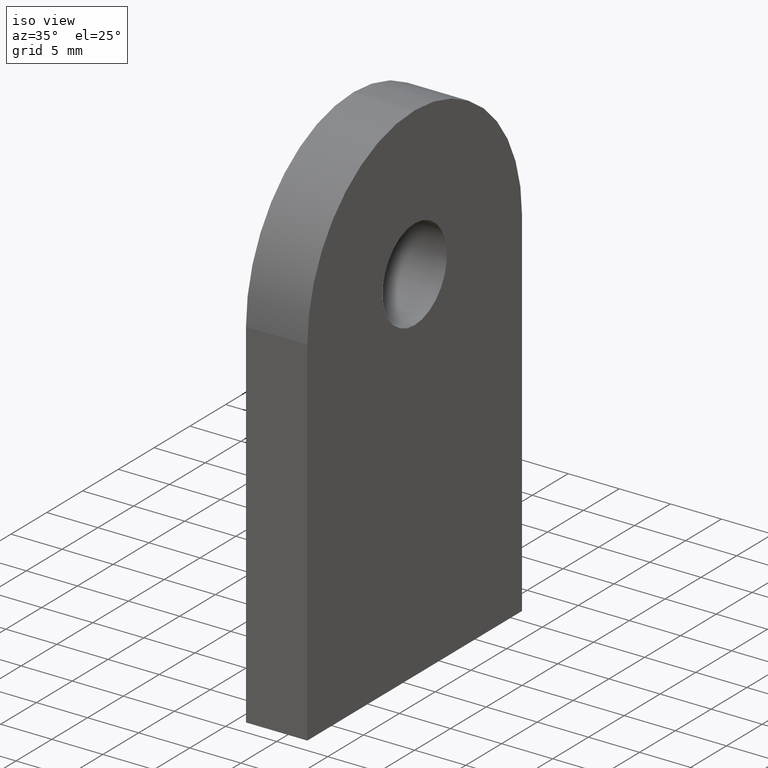
[diagram: clean part render]
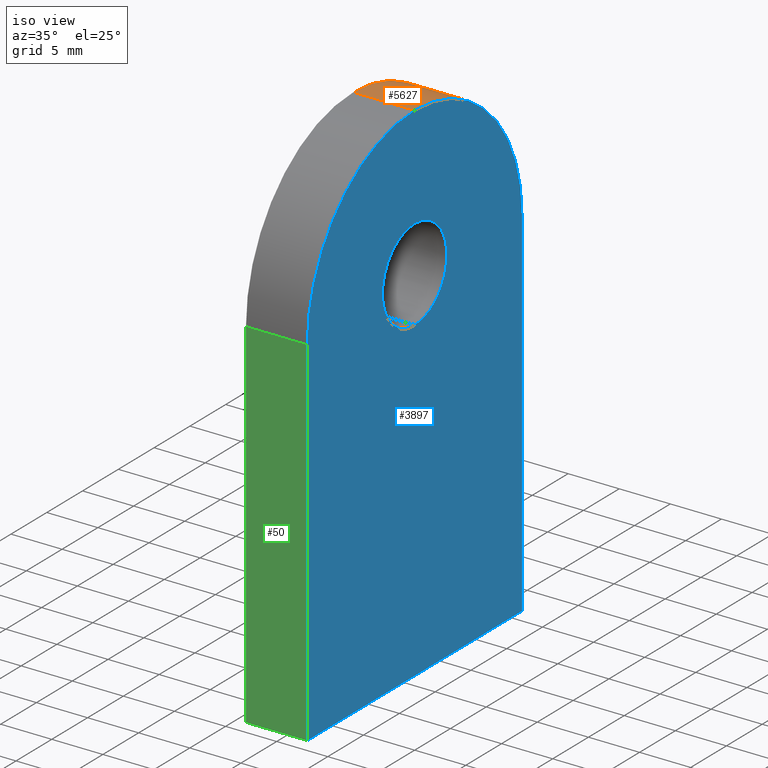
[diagram: same view with three faces highlighted in distinct colors, each labeled with its STEP entity id]
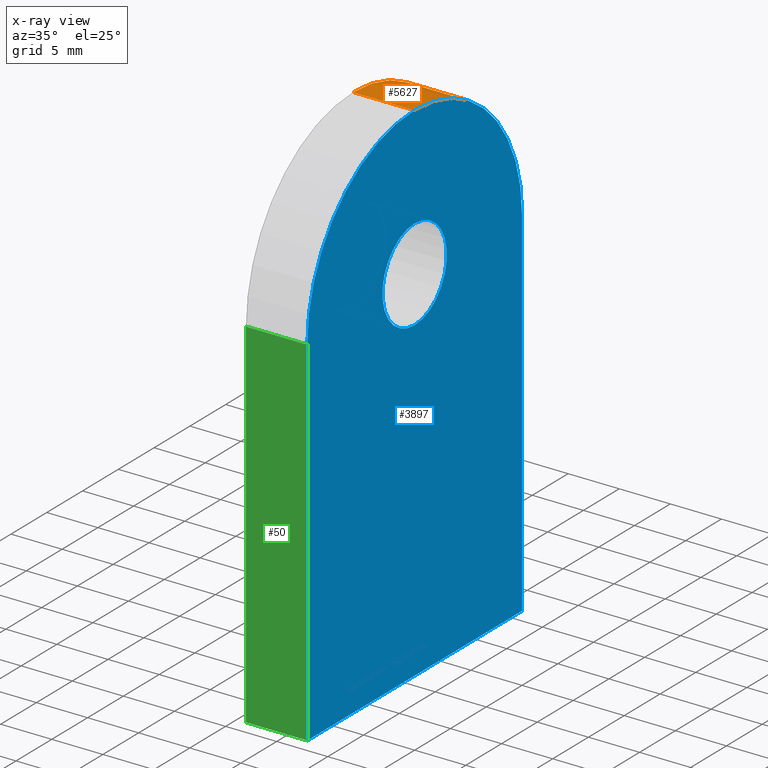
[diagram: x-ray of the same camera — body ghosted, the three highlighted faces saturated]
A machine part, iso view with three faces highlighted in distinct colors.
The next image is the same camera in x-ray (body ghosted, the three faces saturated) — at least one of them is partly hidden behind the body in this view.
Their STEP definitions:

[orange] entity #5627 — the highlighted cylindrical surface (partial cylindrical patch) has radius 15 mm, axis along (-1, -0, -0).
#360 = CARTESIAN_POINT ( 'NONE',  ( 3.000000000000000000, 14.99999999999999800, 34.99999999999999300 ) ) ;
#681 = DIRECTION ( 'NONE',  ( -1.000000000000000000, -0.0000000000000000000, -0.0000000000000000000 ) ) ;
#778 = DIRECTION ( 'NONE',  ( -1.000000000000000000, -0.0000000000000000000, 0.0000000000000000000 ) ) ;
#1973 = VECTOR ( 'NONE', #11272, 1000.000000000000000 ) ;
#2870 = DIRECTION ( 'NONE',  ( -1.000000000000000000, -0.0000000000000000000, 0.0000000000000000000 ) ) ;
#3205 = DIRECTION ( 'NONE',  ( -1.000000000000000000, -0.0000000000000000000, -0.0000000000000000000 ) ) ;
#3506 = CIRCLE ( 'NONE', #5547, 15.00000000000000000 ) ;
#3895 = CIRCLE ( 'NONE', #9639, 15.00000000000000000 ) ;
#4091 = EDGE_CURVE ( 'NONE', #9499, #5758, #7897, .T. ) ;
#4244 = CARTESIAN_POINT ( 'NONE',  ( 3.000000000000000000, 0.0000000000000000000, 49.99999999999999300 ) ) ;
#4472 = EDGE_CURVE ( 'NONE', #9499, #5282, #3506, .T. ) ;
#4508 = CARTESIAN_POINT ( 'NONE',  ( -3.000000000000000000, 0.0000000000000000000, 49.99999999999999300 ) ) ;
#4553 = VERTEX_POINT ( 'NONE', #7978 ) ;
#4656 = DIRECTION ( 'NONE',  ( 0.0000000000000000000, 0.0000000000000000000, 1.000000000000000000 ) ) ;
#4832 = CARTESIAN_POINT ( 'NONE',  ( 3.000000000000000000, 0.0000000000000000000, 34.99999999999999300 ) ) ;
#5282 = VERTEX_POINT ( 'NONE', #9700 ) ;
#5410 = FACE_OUTER_BOUND ( 'NONE', #9135, .T. ) ;
#5547 = AXIS2_PLACEMENT_3D ( 'NONE', #8823, #778, #8861 ) ;
#5627 = ADVANCED_FACE ( 'NONE', ( #5410 ), #7185, .T. ) ;
#5748 = DIRECTION ( 'NONE',  ( 0.0000000000000000000, 0.0000000000000000000, 1.000000000000000000 ) ) ;
#5758 = VERTEX_POINT ( 'NONE', #4508 ) ;
#5922 = AXIS2_PLACEMENT_3D ( 'NONE', #4832, #3205, #5748 ) ;
#5971 = EDGE_CURVE ( 'NONE', #5758, #4553, #3895, .T. ) ;
#6891 = ORIENTED_EDGE ( 'NONE', *, *, #7788, .T. ) ;
#7185 = CYLINDRICAL_SURFACE ( 'NONE', #5922, 15.00000000000000000 ) ;
#7366 = CARTESIAN_POINT ( 'NONE',  ( -3.000000000000000000, 0.0000000000000000000, 34.99999999999999300 ) ) ;
#7710 = LINE ( 'NONE', #360, #7830 ) ;
#7719 = ORIENTED_EDGE ( 'NONE', *, *, #4091, .F. ) ;
#7788 = EDGE_CURVE ( 'NONE', #5282, #4553, #7710, .T. ) ;
#7830 = VECTOR ( 'NONE', #681, 1000.000000000000000 ) ;
#7897 = LINE ( 'NONE', #4244, #1973 ) ;
#7978 = CARTESIAN_POINT ( 'NONE',  ( -3.000000000000000000, 14.99999999999999800, 34.99999999999999300 ) ) ;
#8823 = CARTESIAN_POINT ( 'NONE',  ( 3.000000000000000000, 0.0000000000000000000, 34.99999999999999300 ) ) ;
#8861 = DIRECTION ( 'NONE',  ( 0.0000000000000000000, 0.0000000000000000000, 1.000000000000000000 ) ) ;
#9135 = EDGE_LOOP ( 'NONE', ( #7719, #10598, #6891, #9583 ) ) ;
#9499 = VERTEX_POINT ( 'NONE', #10049 ) ;
#9583 = ORIENTED_EDGE ( 'NONE', *, *, #5971, .F. ) ;
#9639 = AXIS2_PLACEMENT_3D ( 'NONE', #7366, #2870, #4656 ) ;
#9700 = CARTESIAN_POINT ( 'NONE',  ( 3.000000000000000000, 14.99999999999999800, 34.99999999999999300 ) ) ;
#10049 = CARTESIAN_POINT ( 'NONE',  ( 3.000000000000000000, 0.0000000000000000000, 49.99999999999999300 ) ) ;
#10598 = ORIENTED_EDGE ( 'NONE', *, *, #4472, .T. ) ;
#11272 = DIRECTION ( 'NONE',  ( -1.000000000000000000, -0.0000000000000000000, -0.0000000000000000000 ) ) ;

[blue] entity #3897 — the highlighted planar face has unit normal (-1, -0, 0).
#52 = ORIENTED_EDGE ( 'NONE', *, *, #1313, .F. ) ;
#72 = AXIS2_PLACEMENT_3D ( 'NONE', #8174, #9714, #1127 ) ;
#141 = CIRCLE ( 'NONE', #72, 15.00000000000000000 ) ;
#320 = FACE_OUTER_BOUND ( 'NONE', #8721, .T. ) ;
#353 = CARTESIAN_POINT ( 'NONE',  ( 3.000000000000000000, -15.00000000000000000, -3.061616997868383000E-015 ) ) ;
#519 = ORIENTED_EDGE ( 'NONE', *, *, #4190, .F. ) ;
#621 = EDGE_CURVE ( 'NONE', #5282, #6372, #1509, .T. ) ;
#688 = VECTOR ( 'NONE', #1922, 1000.000000000000000 ) ;
#778 = DIRECTION ( 'NONE',  ( -1.000000000000000000, -0.0000000000000000000, 0.0000000000000000000 ) ) ;
#818 = CARTESIAN_POINT ( 'NONE',  ( 3.000000000000000000, 0.0000000000000000000, 35.50000000000000000 ) ) ;
#1056 = VERTEX_POINT ( 'NONE', #353 ) ;
#1127 = DIRECTION ( 'NONE',  ( 0.0000000000000000000, 0.0000000000000000000, 1.000000000000000000 ) ) ;
#1313 = EDGE_CURVE ( 'NONE', #1056, #3963, #10699, .T. ) ;
#1509 = LINE ( 'NONE', #5525, #8283 ) ;
#1590 = CARTESIAN_POINT ( 'NONE',  ( 3.000000000000000000, 15.00000000000000000, -3.061616997868383000E-015 ) ) ;
#1677 = DIRECTION ( 'NONE',  ( 0.0000000000000000000, 0.0000000000000000000, -1.000000000000000000 ) ) ;
#1922 = DIRECTION ( 'NONE',  ( 0.0000000000000000000, -1.000000000000000000, 0.0000000000000000000 ) ) ;
#2026 = ORIENTED_EDGE ( 'NONE', *, *, #621, .F. ) ;
#2538 = VERTEX_POINT ( 'NONE', #7226 ) ;
#2830 = EDGE_LOOP ( 'NONE', ( #6158, #519 ) ) ;
#3373 = DIRECTION ( 'NONE',  ( 1.000000000000000000, 0.0000000000000000000, 0.0000000000000000000 ) ) ;
#3404 = AXIS2_PLACEMENT_3D ( 'NONE', #5268, #9653, #8832 ) ;
#3506 = CIRCLE ( 'NONE', #5547, 15.00000000000000000 ) ;
#3897 = ADVANCED_FACE ( 'NONE', ( #10624, #320 ), #8061, .F. ) ;
#3939 = AXIS2_PLACEMENT_3D ( 'NONE', #818, #3373, #6061 ) ;
#3963 = VERTEX_POINT ( 'NONE', #5025 ) ;
#4190 = EDGE_CURVE ( 'NONE', #6853, #2538, #7347, .T. ) ;
#4472 = EDGE_CURVE ( 'NONE', #9499, #5282, #3506, .T. ) ;
#4968 = CARTESIAN_POINT ( 'NONE',  ( 3.000000000000000000, 5.510910596163087600E-016, 40.00000000000000000 ) ) ;
#5025 = CARTESIAN_POINT ( 'NONE',  ( 3.000000000000000000, -14.99999999999999800, 34.99999999999999300 ) ) ;
#5268 = CARTESIAN_POINT ( 'NONE',  ( 3.000000000000000000, 0.0000000000000000000, 34.99999999999999300 ) ) ;
#5282 = VERTEX_POINT ( 'NONE', #9700 ) ;
#5328 = DIRECTION ( 'NONE',  ( 0.0000000000000000000, 4.956352788505163400E-017, 1.000000000000000000 ) ) ;
#5525 = CARTESIAN_POINT ( 'NONE',  ( 3.000000000000000000, 14.99999999999999800, 34.99999999999999300 ) ) ;
#5547 = AXIS2_PLACEMENT_3D ( 'NONE', #8823, #778, #8861 ) ;
#6047 = CARTESIAN_POINT ( 'NONE',  ( 3.000000000000000000, 0.0000000000000000000, 35.50000000000000000 ) ) ;
#6061 = DIRECTION ( 'NONE',  ( 0.0000000000000000000, 0.0000000000000000000, -1.000000000000000000 ) ) ;
#6096 = CARTESIAN_POINT ( 'NONE',  ( 3.000000000000000000, -15.00000000000000000, -3.061616997868383000E-015 ) ) ;
#6158 = ORIENTED_EDGE ( 'NONE', *, *, #6252, .F. ) ;
#6252 = EDGE_CURVE ( 'NONE', #2538, #6853, #7324, .T. ) ;
#6372 = VERTEX_POINT ( 'NONE', #1590 ) ;
#6757 = EDGE_CURVE ( 'NONE', #3963, #9499, #141, .T. ) ;
#6853 = VERTEX_POINT ( 'NONE', #4968 ) ;
#6887 = VECTOR ( 'NONE', #5328, 1000.000000000000000 ) ;
#6935 = AXIS2_PLACEMENT_3D ( 'NONE', #6047, #6965, #1677 ) ;
#6965 = DIRECTION ( 'NONE',  ( 1.000000000000000000, 0.0000000000000000000, 0.0000000000000000000 ) ) ;
#7027 = LINE ( 'NONE', #10667, #688 ) ;
#7226 = CARTESIAN_POINT ( 'NONE',  ( 3.000000000000000000, 0.0000000000000000000, 30.99999999999999600 ) ) ;
#7315 = ORIENTED_EDGE ( 'NONE', *, *, #7575, .F. ) ;
#7324 = CIRCLE ( 'NONE', #3939, 4.500000000000000900 ) ;
#7347 = CIRCLE ( 'NONE', #6935, 4.500000000000000900 ) ;
#7439 = DIRECTION ( 'NONE',  ( 0.0000000000000000000, 4.956352788505163400E-017, -1.000000000000000000 ) ) ;
#7575 = EDGE_CURVE ( 'NONE', #6372, #1056, #7027, .T. ) ;
#7725 = ORIENTED_EDGE ( 'NONE', *, *, #4472, .F. ) ;
#8061 = PLANE ( 'NONE',  #3404 ) ;
#8174 = CARTESIAN_POINT ( 'NONE',  ( 3.000000000000000000, 0.0000000000000000000, 34.99999999999999300 ) ) ;
#8283 = VECTOR ( 'NONE', #7439, 1000.000000000000000 ) ;
#8579 = ORIENTED_EDGE ( 'NONE', *, *, #6757, .F. ) ;
#8721 = EDGE_LOOP ( 'NONE', ( #8579, #52, #7315, #2026, #7725 ) ) ;
#8823 = CARTESIAN_POINT ( 'NONE',  ( 3.000000000000000000, 0.0000000000000000000, 34.99999999999999300 ) ) ;
#8832 = DIRECTION ( 'NONE',  ( 0.0000000000000000000, 0.0000000000000000000, 1.000000000000000000 ) ) ;
#8861 = DIRECTION ( 'NONE',  ( 0.0000000000000000000, 0.0000000000000000000, 1.000000000000000000 ) ) ;
#9499 = VERTEX_POINT ( 'NONE', #10049 ) ;
#9653 = DIRECTION ( 'NONE',  ( -1.000000000000000000, -0.0000000000000000000, 0.0000000000000000000 ) ) ;
#9700 = CARTESIAN_POINT ( 'NONE',  ( 3.000000000000000000, 14.99999999999999800, 34.99999999999999300 ) ) ;
#9714 = DIRECTION ( 'NONE',  ( -1.000000000000000000, -0.0000000000000000000, 0.0000000000000000000 ) ) ;
#10049 = CARTESIAN_POINT ( 'NONE',  ( 3.000000000000000000, 0.0000000000000000000, 49.99999999999999300 ) ) ;
#10624 = FACE_BOUND ( 'NONE', #2830, .T. ) ;
#10667 = CARTESIAN_POINT ( 'NONE',  ( 3.000000000000000000, 15.00000000000000000, -3.061616997868383000E-015 ) ) ;
#10699 = LINE ( 'NONE', #6096, #6887 ) ;

[green] entity #50 — the highlighted planar face has unit normal (0, -1, 0).
#50 = ADVANCED_FACE ( 'NONE', ( #6505 ), #8259, .T. ) ;
#353 = CARTESIAN_POINT ( 'NONE',  ( 3.000000000000000000, -15.00000000000000000, -3.061616997868383000E-015 ) ) ;
#580 = EDGE_LOOP ( 'NONE', ( #10682, #3652, #10612, #9301 ) ) ;
#1056 = VERTEX_POINT ( 'NONE', #353 ) ;
#1313 = EDGE_CURVE ( 'NONE', #1056, #3963, #10699, .T. ) ;
#1398 = VERTEX_POINT ( 'NONE', #7313 ) ;
#1548 = LINE ( 'NONE', #9595, #10339 ) ;
#1622 = LINE ( 'NONE', #5283, #9314 ) ;
#1821 = AXIS2_PLACEMENT_3D ( 'NONE', #3836, #7282, #4731 ) ;
#2793 = CARTESIAN_POINT ( 'NONE',  ( -3.000000000000000000, -14.99999999999999800, 34.99999999999999300 ) ) ;
#3438 = VECTOR ( 'NONE', #4605, 1000.000000000000000 ) ;
#3561 = VERTEX_POINT ( 'NONE', #2793 ) ;
#3652 = ORIENTED_EDGE ( 'NONE', *, *, #5233, .F. ) ;
#3836 = CARTESIAN_POINT ( 'NONE',  ( 3.000000000000000000, -15.00000000000000000, -3.061616997868383000E-015 ) ) ;
#3963 = VERTEX_POINT ( 'NONE', #5025 ) ;
#4362 = DIRECTION ( 'NONE',  ( -1.000000000000000000, -0.0000000000000000000, -0.0000000000000000000 ) ) ;
#4565 = CARTESIAN_POINT ( 'NONE',  ( 3.000000000000000000, -14.99999999999999800, 34.99999999999999300 ) ) ;
#4605 = DIRECTION ( 'NONE',  ( -1.000000000000000000, -0.0000000000000000000, -0.0000000000000000000 ) ) ;
#4731 = DIRECTION ( 'NONE',  ( 0.0000000000000000000, -4.956352788505162800E-017, -1.000000000000000000 ) ) ;
#5025 = CARTESIAN_POINT ( 'NONE',  ( 3.000000000000000000, -14.99999999999999800, 34.99999999999999300 ) ) ;
#5233 = EDGE_CURVE ( 'NONE', #1056, #1398, #1548, .T. ) ;
#5283 = CARTESIAN_POINT ( 'NONE',  ( -3.000000000000000000, -15.00000000000000000, -3.061616997868383000E-015 ) ) ;
#5328 = DIRECTION ( 'NONE',  ( 0.0000000000000000000, 4.956352788505163400E-017, 1.000000000000000000 ) ) ;
#6096 = CARTESIAN_POINT ( 'NONE',  ( 3.000000000000000000, -15.00000000000000000, -3.061616997868383000E-015 ) ) ;
#6505 = FACE_OUTER_BOUND ( 'NONE', #580, .T. ) ;
#6887 = VECTOR ( 'NONE', #5328, 1000.000000000000000 ) ;
#7282 = DIRECTION ( 'NONE',  ( 0.0000000000000000000, -1.000000000000000000, 4.956352788505162800E-017 ) ) ;
#7313 = CARTESIAN_POINT ( 'NONE',  ( -3.000000000000000000, -15.00000000000000000, -3.061616997868383000E-015 ) ) ;
#8259 = PLANE ( 'NONE',  #1821 ) ;
#9064 = LINE ( 'NONE', #4565, #3438 ) ;
#9301 = ORIENTED_EDGE ( 'NONE', *, *, #10202, .T. ) ;
#9314 = VECTOR ( 'NONE', #11371, 1000.000000000000000 ) ;
#9595 = CARTESIAN_POINT ( 'NONE',  ( 3.000000000000000000, -15.00000000000000000, -3.061616997868383000E-015 ) ) ;
#10202 = EDGE_CURVE ( 'NONE', #3963, #3561, #9064, .T. ) ;
#10339 = VECTOR ( 'NONE', #4362, 1000.000000000000000 ) ;
#10427 = EDGE_CURVE ( 'NONE', #1398, #3561, #1622, .T. ) ;
#10612 = ORIENTED_EDGE ( 'NONE', *, *, #1313, .T. ) ;
#10682 = ORIENTED_EDGE ( 'NONE', *, *, #10427, .F. ) ;
#10699 = LINE ( 'NONE', #6096, #6887 ) ;
#11371 = DIRECTION ( 'NONE',  ( 0.0000000000000000000, 4.956352788505163400E-017, 1.000000000000000000 ) ) ;